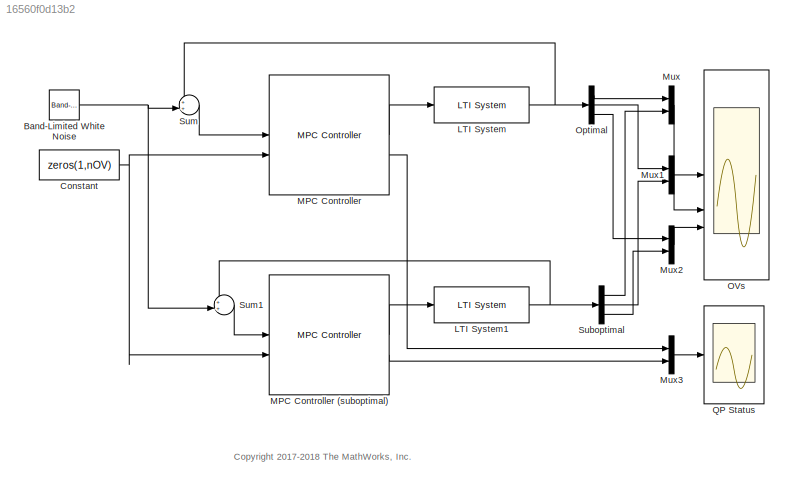
MODEL slx_16560f0d13b2
KIND model
CONFIG AbsTol = auto
CONFIG EnableMultiTasking = off
CONFIG FixedStep = auto
CONFIG MaxStep = auto
CONFIG MinStep = auto
CONFIG RelTol = 1e-3
CONFIG SampleTimeConstraint = Unconstrained
CONFIG SolverName = VariableStepAuto
CONFIG StartTime = 0.0
CONFIG StopTime = T
BLOCK [Reference] Band-Limited White Noise  REF=simulink/Sources/Band-Limited
White Noise
  SourceBlock = simulink/Sources/Band-Limited\nWhite Noise
  SourceType = Band-Limited White Noise.
BLOCK [Constant] Constant
  Value = zeros(1,nOV)
BLOCK [Reference] LTI System  REF=cstblocks/LTI System
  SourceBlock = cstblocks/LTI System
  SourceType = LTI Block
BLOCK [Reference] LTI System1  REF=cstblocks/LTI System
  SourceBlock = cstblocks/LTI System
  SourceType = LTI Block
BLOCK [Reference] MPC Controller  REF=mpclib/MPC Controller  (lib defined in mdl_ae329e0e0455)
  SCDEnableBlockLinearizationSpecification = on
  SourceBlock = mpclib/MPC Controller
  SourceType = MPC
BLOCK [Reference] MPC Controller (suboptimal)  REF=mpclib/MPC Controller  (lib defined in mdl_ae329e0e0455)
  SCDEnableBlockLinearizationSpecification = on
  SourceBlock = mpclib/MPC Controller
  SourceType = MPC
BLOCK [Mux] Mux
  DisplayOption = bar
  Inputs = 2
BLOCK [Mux] Mux1
  DisplayOption = bar
  Inputs = 2
BLOCK [Mux] Mux2
  DisplayOption = bar
  Inputs = 2
BLOCK [Mux] Mux3
  DisplayOption = bar
  Inputs = 2
BLOCK [Scope] OVs
  Floating = off
  NumInputPorts = 3
  ScopeSpecificationString = Simulink.scopes.TimeScopeBlockCfg('CurrentConfiguration', extmgr.ConfigurationSet(extmgr.Configuration('Core','General UI',true),extmgr.Configuration('Core','Source UI',true),extmgr.Configuration('Sources','WiredSimulink',true,'DataLoggingVariableName','OVs','DataLoggingSaveFormat','Array','SampleTime','Ts'),extmgr.Configuration('Visuals','Time Domain',true,'SerializedDisplays',{struct('MinYLimRea...<+2788ch>
BLOCK [Demux] Optimal
  Outputs = 3
BLOCK [Scope] QP Status
  Floating = off
  NumInputPorts = 1
  ScopeSpecificationString = Simulink.scopes.TimeScopeBlockCfg('CurrentConfiguration', extmgr.ConfigurationSet(extmgr.Configuration('Core','General UI',true),extmgr.Configuration('Core','Source UI',true),extmgr.Configuration('Sources','WiredSimulink',true,'DataLogging',true,'DataLoggingVariableName','QPstatus','DataLoggingSaveFormat','Array'),extmgr.Configuration('Visuals','Time Domain',true,'SerializedDisplays',{struct('MinY...<+1502ch>
BLOCK [Demux] Suboptimal
  Outputs = 3
BLOCK [Sum] Sum
  Inputs = ++|
BLOCK [Sum] Sum1
  Inputs = ++|
ANNOTATION (root): <copyright redacted>
NET Band-Limited White Noise:1 -> Sum1:2, Sum:2
NET Constant:1 -> MPC Controller (suboptimal):2, MPC Controller:2
NET LTI System1:1 -> Suboptimal:1, Sum1:1
NET LTI System:1 -> Optimal:1, Sum:1
LINE MPC Controller (suboptimal):1 -> LTI System1:1
LINE MPC Controller (suboptimal):2 -> Mux3:2
LINE MPC Controller:1 -> LTI System:1
LINE MPC Controller:2 -> Mux3:1
LINE Mux1:1 -> OVs:2
LINE Mux2:1 -> OVs:3
LINE Mux3:1 -> QP Status:1
LINE Mux:1 -> OVs:1
LINE Optimal:1 -> Mux:1
LINE Optimal:2 -> Mux1:1
LINE Optimal:3 -> Mux2:1
LINE Suboptimal:1 -> Mux:2
LINE Suboptimal:2 -> Mux1:2
LINE Suboptimal:3 -> Mux2:2
LINE Sum1:1 -> MPC Controller (suboptimal):1
LINE Sum:1 -> MPC Controller:1
note: NET lines group one-source signal fan-out (src -> all destinations, sorted); 1:1 wires keep LINE
